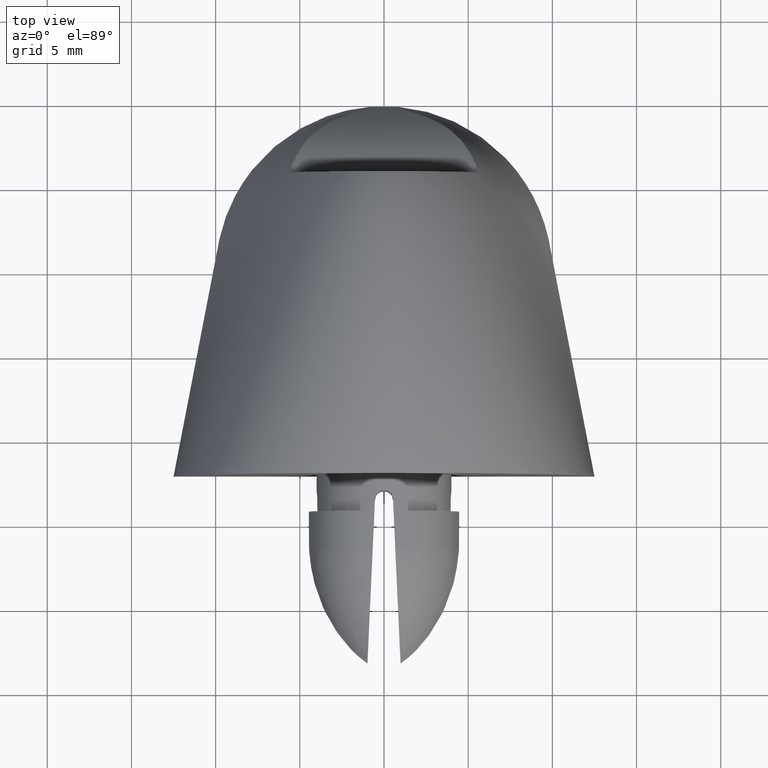
[diagram: clean part render]
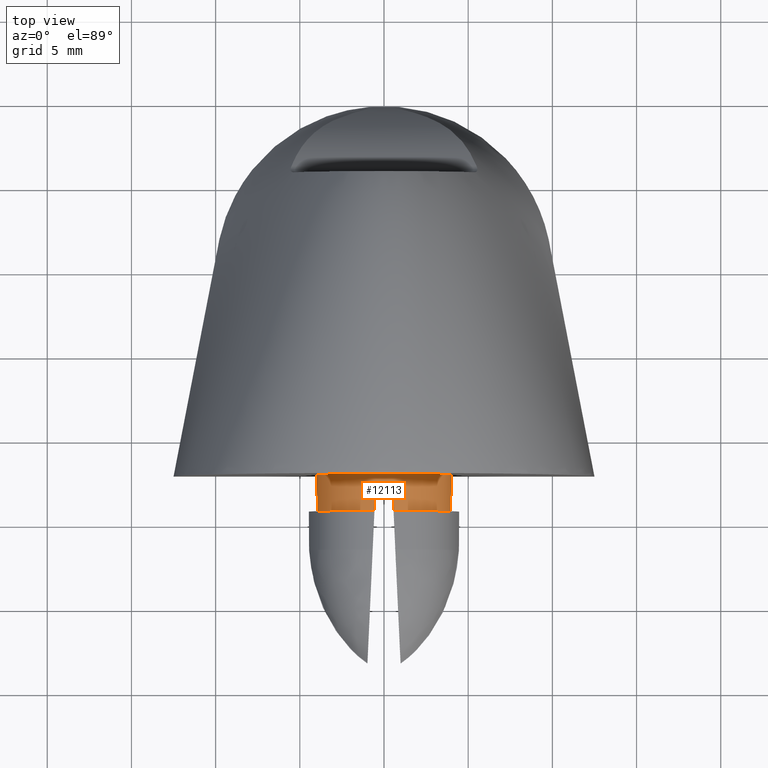
[diagram: same view with one face highlighted and labeled with its STEP entity id]
A machine part, top view. The second image highlights one B-rep face of the part: STEP entity #12113.
In plain terms, the highlighted cylindrical surface (partial cylindrical patch) has radius 4 mm, axis along (0, 1, 0).
Its self-contained STEP definition (entity closure, byte-faithful):
#515=CARTESIAN_POINT('',(-0.576460817090386,-14.200313095812774,2.441348660262285));
#516=VERTEX_POINT('',#515);
#517=CARTESIAN_POINT('',(-3.959314615805148,-14.200313095812774,5.830534163086135));
#518=VERTEX_POINT('',#517);
#519=CARTESIAN_POINT('',(0.000000074681687,-14.200313095812774,6.399592316261412));
#520=DIRECTION('',(0.0,1.0,0.0));
#521=DIRECTION('',(1.0,0.0,0.0));
#522=AXIS2_PLACEMENT_3D('',#519,#520,#521);
#523=CIRCLE('',#522,4.0);
#524=EDGE_CURVE('',#516,#518,#523,.T.);
#548=CARTESIAN_POINT('',(0.576460966453745,-14.200313095812774,2.441348660262293));
#549=VERTEX_POINT('',#548);
#556=CARTESIAN_POINT('',(3.959314765168479,-14.200313095812774,5.830534163086135));
#557=VERTEX_POINT('',#556);
#558=CARTESIAN_POINT('',(0.000000074681687,-14.200313095812774,6.399592316261412));
#559=DIRECTION('',(0.0,1.0,0.0));
#560=DIRECTION('',(1.0,0.0,0.0));
#561=AXIS2_PLACEMENT_3D('',#558,#559,#560);
#562=CIRCLE('',#561,4.0);
#563=EDGE_CURVE('',#557,#549,#562,.T.);
#579=CARTESIAN_POINT('',(0.576460966453730,-14.200313095812774,10.357835972260538));
#580=VERTEX_POINT('',#579);
#581=CARTESIAN_POINT('',(3.957158557878010,-14.200313095812774,6.983455946630123));
#582=VERTEX_POINT('',#581);
#583=CARTESIAN_POINT('',(0.000000074681687,-14.200313095812774,6.399592316261412));
#584=DIRECTION('',(0.0,1.0,0.0));
#585=DIRECTION('',(1.0,0.0,0.0));
#586=AXIS2_PLACEMENT_3D('',#583,#584,#585);
#587=CIRCLE('',#586,4.0);
#588=EDGE_CURVE('',#580,#582,#587,.T.);
#612=CARTESIAN_POINT('',(-0.576460817090393,-14.200313095812774,10.357835972260553));
#613=VERTEX_POINT('',#612);
#620=CARTESIAN_POINT('',(-3.957158408514665,-14.200313095812774,6.983455946630123));
#621=VERTEX_POINT('',#620);
#622=CARTESIAN_POINT('',(0.000000074681687,-14.200313095812774,6.399592316261412));
#623=DIRECTION('',(0.0,1.0,0.0));
#624=DIRECTION('',(1.0,0.0,0.0));
#625=AXIS2_PLACEMENT_3D('',#622,#623,#624);
#626=CIRCLE('',#625,4.0);
#627=EDGE_CURVE('',#621,#613,#626,.T.);
#735=CARTESIAN_POINT('',(-3.961570545964349,-13.521886323051802,6.952727216294299));
#736=VERTEX_POINT('',#735);
#737=CARTESIAN_POINT('',(-3.957158408514665,-14.200313095812923,6.983455946630123));
#738=CARTESIAN_POINT('',(-3.959424098856545,-13.861288711488825,6.968100142140351));
#739=CARTESIAN_POINT('',(-3.961570545964349,-13.521886323051802,6.952727216294328));
#747=(BOUNDED_CURVE()B_SPLINE_CURVE(2,(#737,#738,#739),.UNSPECIFIED.,.F.,.U.)CURVE()GEOMETRIC_REPRESENTATION_ITEM()QUASI_UNIFORM_CURVE()RATIONAL_B_SPLINE_CURVE((1.0,0.999992470895101,1.0))REPRESENTATION_ITEM(''));
#748=EDGE_CURVE('',#621,#736,#747,.T.);
#786=CARTESIAN_POINT('',(3.961570695327673,-13.521886323051802,6.952727216294299));
#787=VERTEX_POINT('',#786);
#794=CARTESIAN_POINT('',(3.961570695327673,-13.521886323051362,6.952727216294299));
#795=CARTESIAN_POINT('',(3.959424248219861,-13.861288711489550,6.968100142140372));
#796=CARTESIAN_POINT('',(3.957158557878010,-14.200313095812788,6.983455946630123));
#804=(BOUNDED_CURVE()B_SPLINE_CURVE(2,(#794,#795,#796),.UNSPECIFIED.,.F.,.U.)CURVE()GEOMETRIC_REPRESENTATION_ITEM()QUASI_UNIFORM_CURVE()RATIONAL_B_SPLINE_CURVE((1.0,0.999992470879688,1.0))REPRESENTATION_ITEM(''));
#805=EDGE_CURVE('',#787,#582,#804,.T.);
#817=CARTESIAN_POINT('',(3.963609721519411,-13.521886323051859,5.861262893421902));
#818=VERTEX_POINT('',#817);
#819=CARTESIAN_POINT('',(3.963609721519411,-13.521886323051859,5.861262893421923));
#820=CARTESIAN_POINT('',(3.963851928713829,-13.482514261030332,5.863046215550682));
#821=CARTESIAN_POINT('',(3.965964552919836,-13.382377164450844,5.878526265436776));
#822=CARTESIAN_POINT('',(3.973082015735677,-13.261576863341745,5.933952214613584));
#823=CARTESIAN_POINT('',(3.983117766061284,-13.144880284218353,6.028588548866274));
#824=CARTESIAN_POINT('',(3.992588608009562,-13.059600053110096,6.141717745729572));
#825=CARTESIAN_POINT('',(3.998865272802242,-13.010262567483537,6.278709182608615));
#826=CARTESIAN_POINT('',(4.000479644123999,-12.996852478124715,6.401075435998301));
#827=CARTESIAN_POINT('',(3.998746289065011,-13.007758168204994,6.527237845468861));
#828=CARTESIAN_POINT('',(3.992000231285196,-13.056426476139102,6.666343101236571));
#829=CARTESIAN_POINT('',(3.981968362530139,-13.142605411854682,6.782865339444861));
#830=CARTESIAN_POINT('',(3.971506402753072,-13.258490303310637,6.878626248720693));
#831=CARTESIAN_POINT('',(3.963990620098500,-13.382402427422917,6.935467415238342));
#832=CARTESIAN_POINT('',(3.961819681454458,-13.482515920766282,6.950943969341779));
#833=CARTESIAN_POINT('',(3.961570695327673,-13.521886323051802,6.952727216294314));
#834=B_SPLINE_CURVE_WITH_KNOTS('',3,(#819,#820,#821,#822,#823,#824,#825,#826,#827,#828,#829,#830,#831,#832,#833),.UNSPECIFIED.,.F.,.U.,(4,1,1,1,1,1,1,1,1,1,1,1,4),(0.0,1.184722287444064,3.017941154572427,3.939346421470016,5.685773819775328,7.223867045552444,8.269329718439403,9.360853967101892,11.001856408974211,12.646066869199100,13.669641626860704,15.501973315303417,16.686485451753448),.UNSPECIFIED.);
#835=EDGE_CURVE('',#818,#787,#834,.T.);
#898=CARTESIAN_POINT('',(-3.963609572156081,-13.521886323051859,5.861262893421902));
#899=VERTEX_POINT('',#898);
#900=CARTESIAN_POINT('',(-3.961570545964349,-13.521886323051767,6.952727216294328));
#901=CARTESIAN_POINT('',(-3.961776671543483,-13.489293153799252,6.951250938014994));
#902=CARTESIAN_POINT('',(-3.963299943568167,-13.409052933410813,6.940368177642647));
#903=CARTESIAN_POINT('',(-3.968396842078860,-13.307114120425041,6.902420003060357));
#904=CARTESIAN_POINT('',(-3.976456725372117,-13.199922084041468,6.834830415353082));
#905=CARTESIAN_POINT('',(-3.984869936475633,-13.116602846286042,6.752707591295199));
#906=CARTESIAN_POINT('',(-3.993119646617998,-13.048807410347294,6.642001224971722));
#907=CARTESIAN_POINT('',(-3.998343200563546,-13.010618538866261,6.532471229628008));
#908=CARTESIAN_POINT('',(-4.000489807900969,-12.996570953891073,6.417410992895164));
#909=CARTESIAN_POINT('',(-3.999363805923558,-13.006273266768417,6.301538986160246));
#910=CARTESIAN_POINT('',(-3.994999353834693,-13.040627078736073,6.189994216057350));
#911=CARTESIAN_POINT('',(-3.987438112076980,-13.104812975494028,6.076431479700197));
#912=CARTESIAN_POINT('',(-3.979344244584304,-13.185350484718988,5.991407862862836));
#913=CARTESIAN_POINT('',(-3.971126173162695,-13.292469067678731,5.918550940943433));
#914=CARTESIAN_POINT('',(-3.965545381854625,-13.399294739491580,5.875465747697660));
#915=CARTESIAN_POINT('',(-3.963831064456159,-13.485881576797439,5.862893696012399));
#916=CARTESIAN_POINT('',(-3.963609572156081,-13.521886323051824,5.861262893421930));
#917=B_SPLINE_CURVE_WITH_KNOTS('',3,(#900,#901,#902,#903,#904,#905,#906,#907,#908,#909,#910,#911,#912,#913,#914,#915,#916),.UNSPECIFIED.,.F.,.U.,(4,1,1,1,1,1,1,1,1,1,1,1,1,1,4),(0.0,0.980137401755299,2.417356054818897,3.239608408861149,4.778399654168951,5.901901717982666,7.121270864140540,8.240048164858408,9.361354190438664,10.591012879687323,11.721614160542007,13.260231668706643,14.078563764997705,15.604609098565749,16.687652464579749),.UNSPECIFIED.);
#918=EDGE_CURVE('',#736,#899,#917,.T.);
#977=CARTESIAN_POINT('',(3.959314765168479,-14.200313095812831,5.830534163086121));
#978=CARTESIAN_POINT('',(3.961521833391004,-13.861283594400064,5.845890199349832));
#979=CARTESIAN_POINT('',(3.963609721519411,-13.521886323051874,5.861262893421895));
#987=(BOUNDED_CURVE()B_SPLINE_CURVE(2,(#977,#978,#979),.UNSPECIFIED.,.F.,.U.)CURVE()GEOMETRIC_REPRESENTATION_ITEM()QUASI_UNIFORM_CURVE()RATIONAL_B_SPLINE_CURVE((1.0,0.999992478850743,1.0))REPRESENTATION_ITEM(''));
#988=EDGE_CURVE('',#557,#818,#987,.T.);
#1018=CARTESIAN_POINT('',(-3.963609572156081,-13.521886323051824,5.861262893421895));
#1019=CARTESIAN_POINT('',(-3.961521684027652,-13.861283594400817,5.845890199349803));
#1020=CARTESIAN_POINT('',(-3.959314615805148,-14.200313095812504,5.830534163086135));
#1028=(BOUNDED_CURVE()B_SPLINE_CURVE(2,(#1018,#1019,#1020),.UNSPECIFIED.,.F.,.U.)CURVE()GEOMETRIC_REPRESENTATION_ITEM()QUASI_UNIFORM_CURVE()RATIONAL_B_SPLINE_CURVE((1.0,0.999992478848403,1.0))REPRESENTATION_ITEM(''));
#1029=EDGE_CURVE('',#899,#518,#1028,.T.);
#1041=CARTESIAN_POINT('',(0.545732236117971,-13.521886323051802,2.436995136636163));
#1042=VERTEX_POINT('',#1041);
#1049=CARTESIAN_POINT('',(0.545732236117949,-13.521886323051540,2.436995136636163));
#1050=CARTESIAN_POINT('',(0.561105045986046,-13.861286150936458,2.439112292727565));
#1051=CARTESIAN_POINT('',(0.576460966453730,-14.200313095812774,2.441348660262293));
#1059=(BOUNDED_CURVE()B_SPLINE_CURVE(2,(#1049,#1050,#1051),.UNSPECIFIED.,.F.,.U.)CURVE()GEOMETRIC_REPRESENTATION_ITEM()QUASI_UNIFORM_CURVE()RATIONAL_B_SPLINE_CURVE((1.0,0.999992474936881,1.0))REPRESENTATION_ITEM(''));
#1060=EDGE_CURVE('',#1042,#549,#1059,.T.);
#1080=CARTESIAN_POINT('',(0.545732236117971,-13.521886323051802,10.362189495886689));
#1081=VERTEX_POINT('',#1080);
#1082=CARTESIAN_POINT('',(0.576460966453745,-14.200313095812916,10.357835972260538));
#1083=CARTESIAN_POINT('',(0.561105045986068,-13.861286150936550,10.360072339795266));
#1084=CARTESIAN_POINT('',(0.545732236118006,-13.521886323052506,10.362189495886689));
#1092=(BOUNDED_CURVE()B_SPLINE_CURVE(2,(#1082,#1083,#1084),.UNSPECIFIED.,.F.,.U.)CURVE()GEOMETRIC_REPRESENTATION_ITEM()QUASI_UNIFORM_CURVE()RATIONAL_B_SPLINE_CURVE((1.0,0.999992474893540,1.0))REPRESENTATION_ITEM(''));
#1093=EDGE_CURVE('',#580,#1081,#1092,.T.);
#1111=CARTESIAN_POINT('',(0.499435373999937,-13.325247648350640,2.430894244878964));
#1112=VERTEX_POINT('',#1111);
#1119=CARTESIAN_POINT('',(0.499429155025005,-13.325250565023154,2.430891345298015));
#1120=CARTESIAN_POINT('',(0.513617863741942,-13.357277178912348,2.432675023875234));
#1121=CARTESIAN_POINT('',(0.535101260643145,-13.421802997998491,2.435527859403628));
#1122=CARTESIAN_POINT('',(0.544255389469214,-13.489280605378994,2.436791744094045));
#1123=CARTESIAN_POINT('',(0.545732236117971,-13.521886323051802,2.436995136636163));
#1124=B_SPLINE_CURVE_WITH_KNOTS('',3,(#1119,#1120,#1121,#1122,#1123),.UNSPECIFIED.,.F.,.U.,(4,1,4),(14.654776785334136,15.707122774186843,16.687637391440170),.UNSPECIFIED.);
#1125=EDGE_CURVE('',#1112,#1042,#1124,.T.);
#1135=CARTESIAN_POINT('',(-0.545732086754612,-13.521886323051802,2.436995136636163));
#1136=VERTEX_POINT('',#1135);
#1137=CARTESIAN_POINT('',(-0.499435317260364,-13.325247857332492,2.430894256535062));
#1138=VERTEX_POINT('',#1137);
#1139=CARTESIAN_POINT('',(-0.545732086754597,-13.521886323051802,2.436995136636163));
#1140=CARTESIAN_POINT('',(-0.544101139563764,-13.485878384320635,2.436770521239914));
#1141=CARTESIAN_POINT('',(-0.534305231671802,-13.418416240568760,2.435416106780046));
#1142=CARTESIAN_POINT('',(-0.512232001363159,-13.354153046613447,2.432500321510567));
#1143=CARTESIAN_POINT('',(-0.499425808312687,-13.325252316564097,2.430889846885059));
#1144=B_SPLINE_CURVE_WITH_KNOTS('',3,(#1139,#1140,#1141,#1142,#1143),.UNSPECIFIED.,.F.,.U.,(4,1,4),(0.0,1.083141109714540,2.032816674597277),.UNSPECIFIED.);
#1145=EDGE_CURVE('',#1136,#1138,#1144,.T.);
#1171=CARTESIAN_POINT('',(-0.545732086754612,-13.521886323051802,10.362189495886689));
#1172=VERTEX_POINT('',#1171);
#1173=CARTESIAN_POINT('',(0.545732236117971,-13.521886323051802,10.362189495886689));
#1174=CARTESIAN_POINT('',(0.544255389469214,-13.489280605378994,10.362392888428793));
#1175=CARTESIAN_POINT('',(0.533368409645114,-13.409029675543088,10.363896022958130));
#1176=CARTESIAN_POINT('',(0.495410695762502,-13.307085128846261,10.368921958798829));
#1177=CARTESIAN_POINT('',(0.427820641655281,-13.199905709918568,10.376853876333740));
#1178=CARTESIAN_POINT('',(0.345705194983388,-13.116598496113440,10.385111765135804));
#1179=CARTESIAN_POINT('',(0.235007226867566,-13.048808348530606,10.393154326304092));
#1180=CARTESIAN_POINT('',(0.125477906491604,-13.010618597278487,10.398174672796564));
#1181=CARTESIAN_POINT('',(0.010409533561294,-12.996569983093437,10.400108450307123));
#1182=CARTESIAN_POINT('',(-0.105477080465910,-13.006276123303692,10.398767502548871));
#1183=CARTESIAN_POINT('',(-0.217032627878162,-13.040639755199145,10.394194926709261));
#1184=CARTESIAN_POINT('',(-0.330594908791824,-13.104836642121668,10.386421109854943));
#1185=CARTESIAN_POINT('',(-0.415609303080174,-13.185376902245039,10.378168039896103));
#1186=CARTESIAN_POINT('',(-0.488449904273118,-13.292484344223880,10.369814087496756));
#1187=CARTESIAN_POINT('',(-0.531529227192713,-13.399298542108447,10.364152345256876));
#1188=CARTESIAN_POINT('',(-0.544101139563764,-13.485878384320635,10.362414111282924));
#1189=CARTESIAN_POINT('',(-0.545732086754597,-13.521886323051802,10.362189495886689));
#1190=B_SPLINE_CURVE_WITH_KNOTS('',3,(#1173,#1174,#1175,#1176,#1177,#1178,#1179,#1180,#1181,#1182,#1183,#1184,#1185,#1186,#1187,#1188,#1189),.UNSPECIFIED.,.F.,.U.,(4,1,1,1,1,1,1,1,1,1,1,1,1,1,4),(0.0,0.980514617253305,2.417675436339381,3.239777989345114,4.778227823504796,5.901489211682783,7.120754699721731,8.239593074391896,9.361068997811255,10.591005222097618,11.721787900739772,13.260473237115718,14.078752806030783,15.604496281725648,16.687637391440184),.UNSPECIFIED.);
#1191=EDGE_CURVE('',#1081,#1172,#1190,.T.);
#1212=CARTESIAN_POINT('',(-0.576460817090393,-14.200313095812810,2.441348660262285));
#1213=CARTESIAN_POINT('',(-0.561104896622716,-13.861286150936571,2.439112292727565));
#1214=CARTESIAN_POINT('',(-0.545732086754612,-13.521886323051824,2.436995136636163));
#1222=(BOUNDED_CURVE()B_SPLINE_CURVE(2,(#1212,#1213,#1214),.UNSPECIFIED.,.F.,.U.)CURVE()GEOMETRIC_REPRESENTATION_ITEM()QUASI_UNIFORM_CURVE()RATIONAL_B_SPLINE_CURVE((1.0,0.999992474928310,1.0))REPRESENTATION_ITEM(''));
#1223=EDGE_CURVE('',#516,#1136,#1222,.T.);
#1235=CARTESIAN_POINT('',(-0.545732086754597,-13.521886323051362,10.362189495886689));
#1236=CARTESIAN_POINT('',(-0.561104896622751,-13.861286150937715,10.360072339795259));
#1237=CARTESIAN_POINT('',(-0.576460817090393,-14.200313095812746,10.357835972260553));
#1245=(BOUNDED_CURVE()B_SPLINE_CURVE(2,(#1235,#1236,#1237),.UNSPECIFIED.,.F.,.U.)CURVE()GEOMETRIC_REPRESENTATION_ITEM()QUASI_UNIFORM_CURVE()RATIONAL_B_SPLINE_CURVE((1.0,0.999992474918907,1.0))REPRESENTATION_ITEM(''));
#1246=EDGE_CURVE('',#1172,#613,#1245,.T.);
#1315=CARTESIAN_POINT('',(-0.499435317265558,-12.000312219234623,2.430894256535716));
#1316=VERTEX_POINT('',#1315);
#1323=CARTESIAN_POINT('',(0.499435373994736,-12.000312219401366,2.430894244878310));
#1324=VERTEX_POINT('',#1323);
#1325=CARTESIAN_POINT('',(0.000000074681687,-12.000313095812857,6.399592316261412));
#1326=DIRECTION('',(0.0,-1.0,0.0));
#1327=DIRECTION('',(1.0,0.0,0.0));
#1328=AXIS2_PLACEMENT_3D('',#1325,#1326,#1327);
#1329=CIRCLE('',#1328,4.0);
#1330=EDGE_CURVE('',#1324,#1316,#1329,.T.);
#12012=CARTESIAN_POINT('',(-0.499435317256911,-12.000312219234623,2.430894256534636));
#12013=DIRECTION('',(0.0,-1.0,0.0));
#12014=VECTOR('',#12013,1.324935638097870);
#12015=LINE('',#12012,#12014);
#12016=EDGE_CURVE('',#1316,#1138,#12015,.T.);
#12055=CARTESIAN_POINT('',(0.499435374003376,-13.325247648350640,2.430894244879397));
#12056=DIRECTION('',(0.0,1.0,0.0));
#12057=VECTOR('',#12056,1.324935428949274);
#12058=LINE('',#12055,#12057);
#12059=EDGE_CURVE('',#1112,#1324,#12058,.T.);
#12086=CARTESIAN_POINT('',(0.000000074681687,-14.200313105812924,6.399592316261412));
#12087=DIRECTION('',(0.0,1.0,0.0));
#12088=DIRECTION('',(0.000000421788204,0.0,-0.999999999999911));
#12089=AXIS2_PLACEMENT_3D('',#12086,#12087,#12088);
#12090=CYLINDRICAL_SURFACE('',#12089,4.0);
#12091=ORIENTED_EDGE('',*,*,#563,.T.);
#12092=ORIENTED_EDGE('',*,*,#1060,.F.);
#12093=ORIENTED_EDGE('',*,*,#1125,.F.);
#12094=ORIENTED_EDGE('',*,*,#12059,.T.);
#12095=ORIENTED_EDGE('',*,*,#1330,.T.);
#12096=ORIENTED_EDGE('',*,*,#12016,.T.);
#12097=ORIENTED_EDGE('',*,*,#1145,.F.);
#12098=ORIENTED_EDGE('',*,*,#1223,.F.);
#12099=ORIENTED_EDGE('',*,*,#524,.T.);
#12100=ORIENTED_EDGE('',*,*,#1029,.F.);
#12101=ORIENTED_EDGE('',*,*,#918,.F.);
#12102=ORIENTED_EDGE('',*,*,#748,.F.);
#12103=ORIENTED_EDGE('',*,*,#627,.T.);
#12104=ORIENTED_EDGE('',*,*,#1246,.F.);
#12105=ORIENTED_EDGE('',*,*,#1191,.F.);
#12106=ORIENTED_EDGE('',*,*,#1093,.F.);
#12107=ORIENTED_EDGE('',*,*,#588,.T.);
#12108=ORIENTED_EDGE('',*,*,#805,.F.);
#12109=ORIENTED_EDGE('',*,*,#835,.F.);
#12110=ORIENTED_EDGE('',*,*,#988,.F.);
#12111=EDGE_LOOP('',(#12091,#12092,#12093,#12094,#12095,#12096,#12097,#12098,#12099,#12100,#12101,#12102,#12103,#12104,#12105,#12106,#12107,#12108,#12109,#12110));
#12112=FACE_OUTER_BOUND('',#12111,.T.);
#12113=ADVANCED_FACE('',(#12112),#12090,.T.);